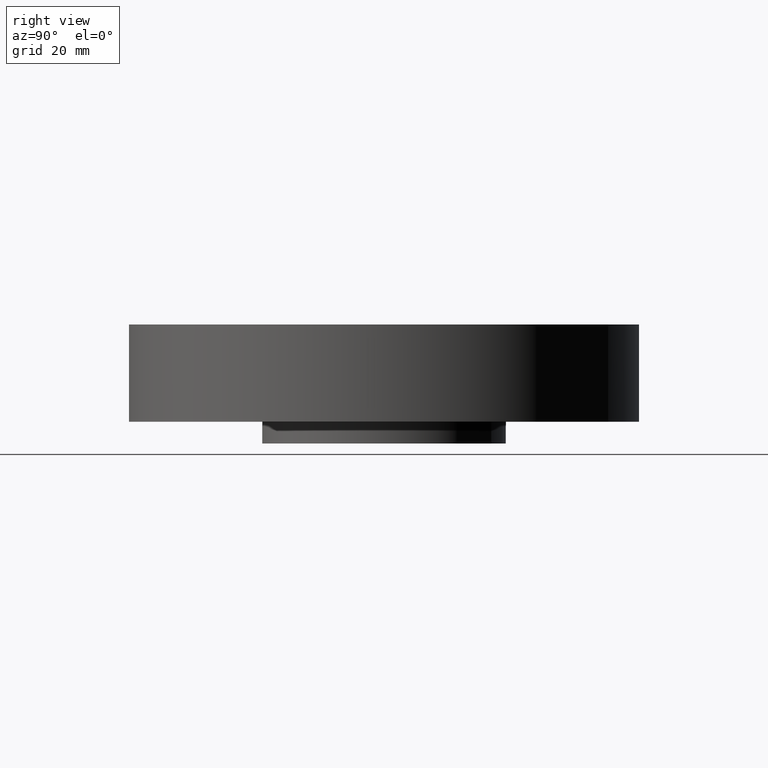
[diagram: clean part render]
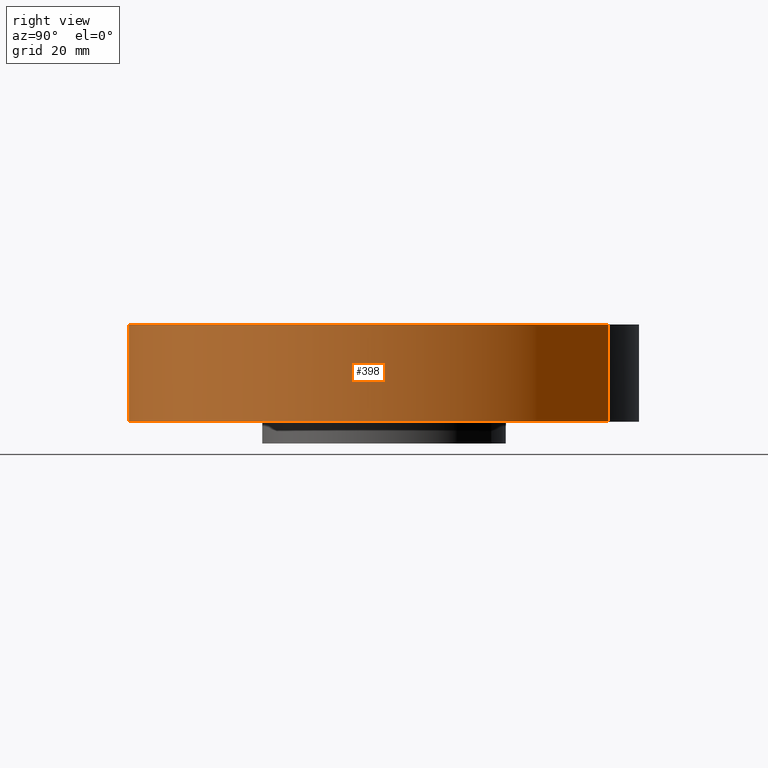
[diagram: same view with one face highlighted and labeled with its STEP entity id]
A machine part, right view. The second image highlights one B-rep face of the part: STEP entity #398.
In plain terms, the highlighted cylindrical surface (partial cylindrical patch) has radius 74.676 mm, axis along (0, 0, -1).
Its self-contained STEP definition (entity closure, byte-faithful):
#283=AXIS2_PLACEMENT_3D('Circle Axis2P3D',#281,#282,$) ;
#371=AXIS2_PLACEMENT_3D('Cylinder Axis2P3D',#368,#369,#370) ;
#382=AXIS2_PLACEMENT_3D('Circle Axis2P3D',#380,#381,$) ;
#276=CARTESIAN_POINT('Vertex',(-1.4095110835,-2.58009273197,2.09805925913E-016)) ;
#278=CARTESIAN_POINT('Vertex',(1.4095110835,2.58009273197,2.09805925913E-016)) ;
#281=CARTESIAN_POINT('Axis2P3D Location',(0.,0.,0.)) ;
#368=CARTESIAN_POINT('Axis2P3D Location',(0.,0.,0.435000000002)) ;
#373=CARTESIAN_POINT('Line Origine',(1.4095110835,2.58009273197,0.560000000002)) ;
#377=CARTESIAN_POINT('Vertex',(1.4095110835,2.58009273197,1.12)) ;
#380=CARTESIAN_POINT('Axis2P3D Location',(0.,0.,1.12)) ;
#384=CARTESIAN_POINT('Vertex',(-1.4095110835,-2.58009273197,1.12)) ;
#387=CARTESIAN_POINT('Line Origine',(-1.4095110835,-2.58009273197,0.560000000002)) ;
#282=DIRECTION('Axis2P3D Direction',(0.,0.,-0.0393700787402)) ;
#369=DIRECTION('Axis2P3D Direction',(0.,0.,-0.0393700787402)) ;
#370=DIRECTION('Axis2P3D XDirection',(-0.0188750212049,-0.0345504945626,0.)) ;
#374=DIRECTION('Vector Direction',(0.,0.,-0.0393700787402)) ;
#381=DIRECTION('Axis2P3D Direction',(0.,0.,-0.0393700787402)) ;
#388=DIRECTION('Vector Direction',(0.,0.,-0.0393700787402)) ;
#375=VECTOR('Line Direction',#374,0.0393700787402) ;
#389=VECTOR('Line Direction',#388,0.0393700787402) ;
#393=ORIENTED_EDGE('',*,*,#285,.F.) ;
#394=ORIENTED_EDGE('',*,*,#379,.T.) ;
#395=ORIENTED_EDGE('',*,*,#386,.T.) ;
#396=ORIENTED_EDGE('',*,*,#391,.F.) ;
#398=ADVANCED_FACE('PartBody',(#397),#372,.T.) ;
#284=CIRCLE('generated circle',#283,2.94000000001) ;
#383=CIRCLE('generated circle',#382,2.94000000001) ;
#372=CYLINDRICAL_SURFACE('generated cylinder',#371,2.94000000001) ;
#285=EDGE_CURVE('',#279,#277,#284,.T.) ;
#379=EDGE_CURVE('',#279,#378,#376,.F.) ;
#386=EDGE_CURVE('',#378,#385,#383,.T.) ;
#391=EDGE_CURVE('',#277,#385,#390,.F.) ;
#392=EDGE_LOOP('',(#393,#394,#395,#396)) ;
#397=FACE_OUTER_BOUND('',#392,.T.) ;
#376=LINE('Line',#373,#375) ;
#390=LINE('Line',#387,#389) ;
#277=VERTEX_POINT('',#276) ;
#279=VERTEX_POINT('',#278) ;
#378=VERTEX_POINT('',#377) ;
#385=VERTEX_POINT('',#384) ;